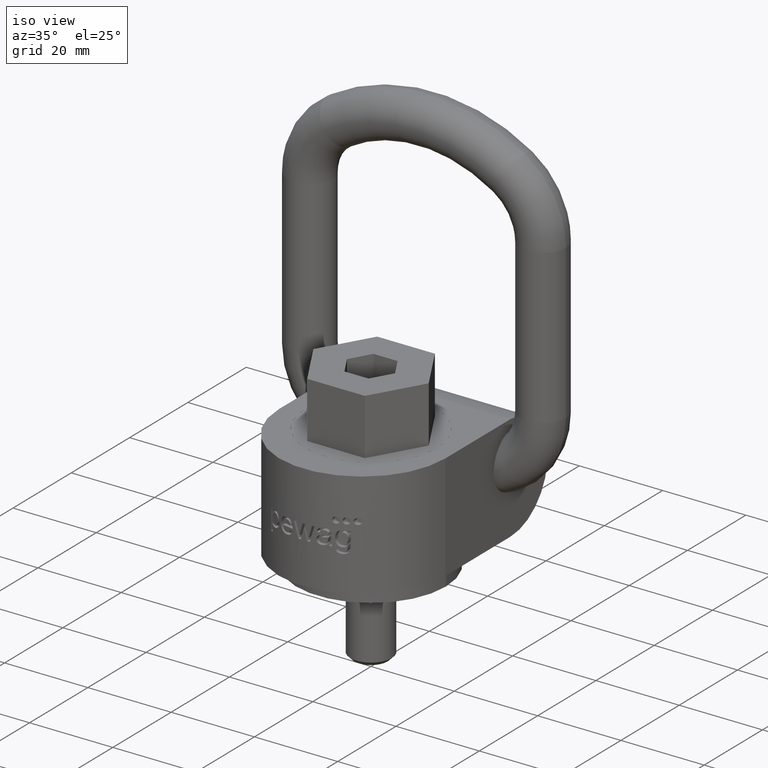
[diagram: clean part render]
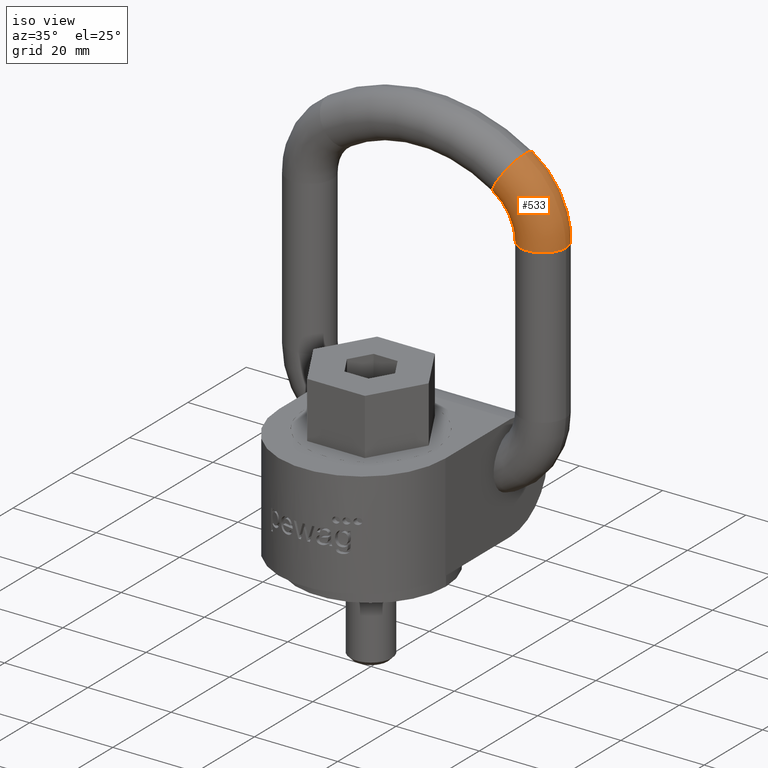
[diagram: same view with one face highlighted and labeled with its STEP entity id]
A machine part, iso view. The second image highlights one B-rep face of the part: STEP entity #533.
In plain terms, the highlighted toroidal blend (fillet) surface has major radius 15.5 mm and minor (blend) radius 5.5 mm.
Its self-contained STEP definition (entity closure, byte-faithful):
#243=TOROIDAL_SURFACE('',#2548,15.5,5.5);
#533=ADVANCED_FACE('',(#621,#622),#243,.T.);
#621=FACE_BOUND('',#783,.T.);
#622=FACE_BOUND('',#784,.T.);
#783=EDGE_LOOP('',(#1724));
#784=EDGE_LOOP('',(#1725));
#1118=CIRCLE('',#2545,5.5);
#1119=CIRCLE('',#2547,5.5);
#1724=ORIENTED_EDGE('',*,*,#2240,.F.);
#1725=ORIENTED_EDGE('',*,*,#2241,.T.);
#1936=VERTEX_POINT('',#5196);
#1937=VERTEX_POINT('',#5199);
#2240=EDGE_CURVE('',#1936,#1936,#1118,.T.);
#2241=EDGE_CURVE('',#1937,#1937,#1119,.T.);
#2545=AXIS2_PLACEMENT_3D('',#5195,#2979,#2980);
#2547=AXIS2_PLACEMENT_3D('',#5198,#2983,#2984);
#2548=AXIS2_PLACEMENT_3D('',#5200,#2985,#2986);
#2979=DIRECTION('',(-0.846797818814145,0.,0.531914893617021));
#2980=DIRECTION('',(0.531914893617021,0.,0.846797818814146));
#2983=DIRECTION('',(6.77576192227313E-16,0.,1.));
#2984=DIRECTION('',(1.,0.,0.));
#2985=DIRECTION('',(0.,1.,0.));
#2986=DIRECTION('',(0.,0.,1.));
#5195=CARTESIAN_POINT('',(20.7446808510638,19.,79.5251149337516));
#5196=CARTESIAN_POINT('',(23.6702127659575,19.,84.1825029372294));
#5198=CARTESIAN_POINT('',(28.,19.,66.3997487421324));
#5199=CARTESIAN_POINT('',(33.5,19.,66.3997487421324));
#5200=CARTESIAN_POINT('',(12.5,19.,66.3997487421324));